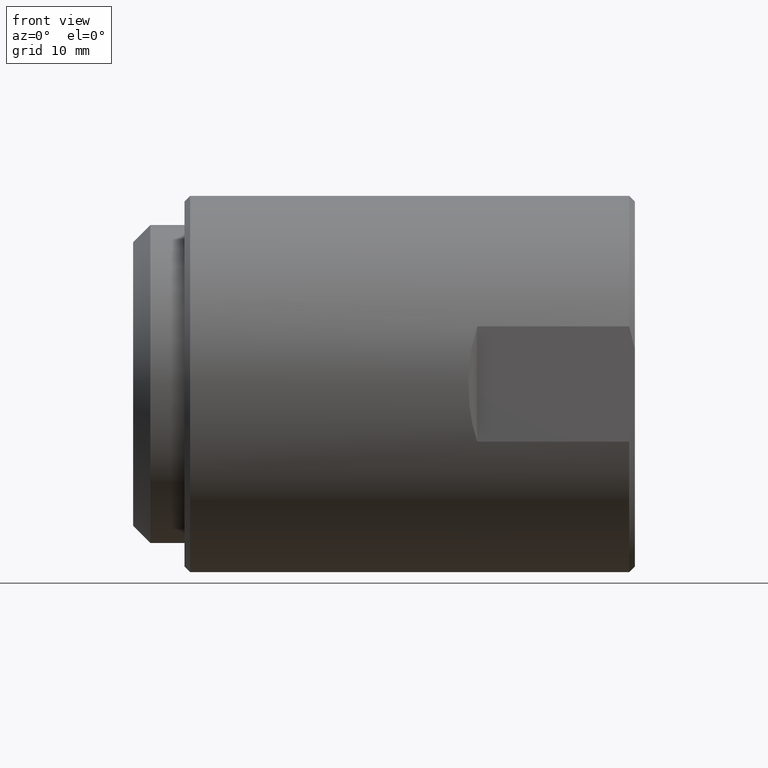
[diagram: clean part render]
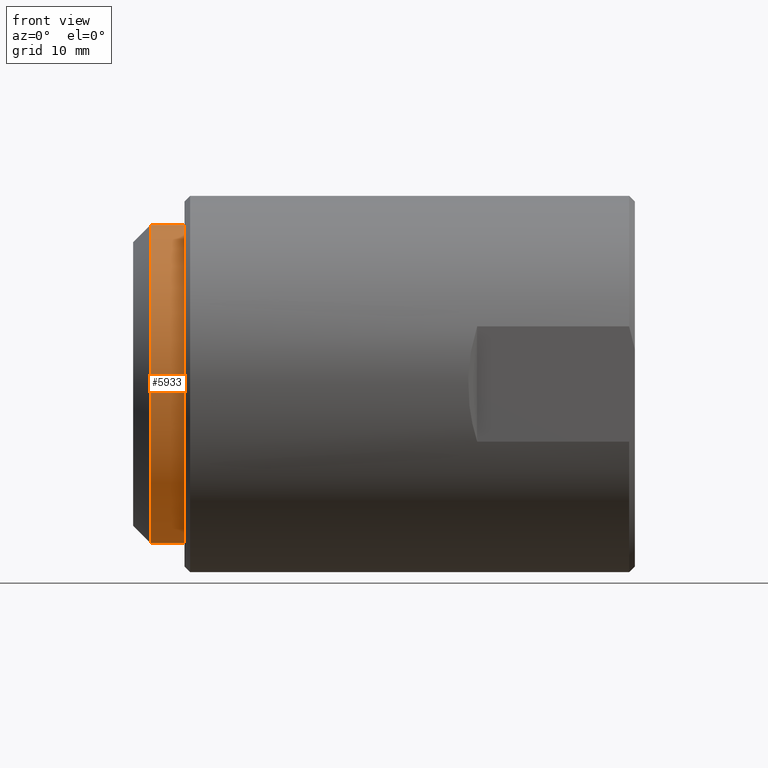
[diagram: same view with one face highlighted and labeled with its STEP entity id]
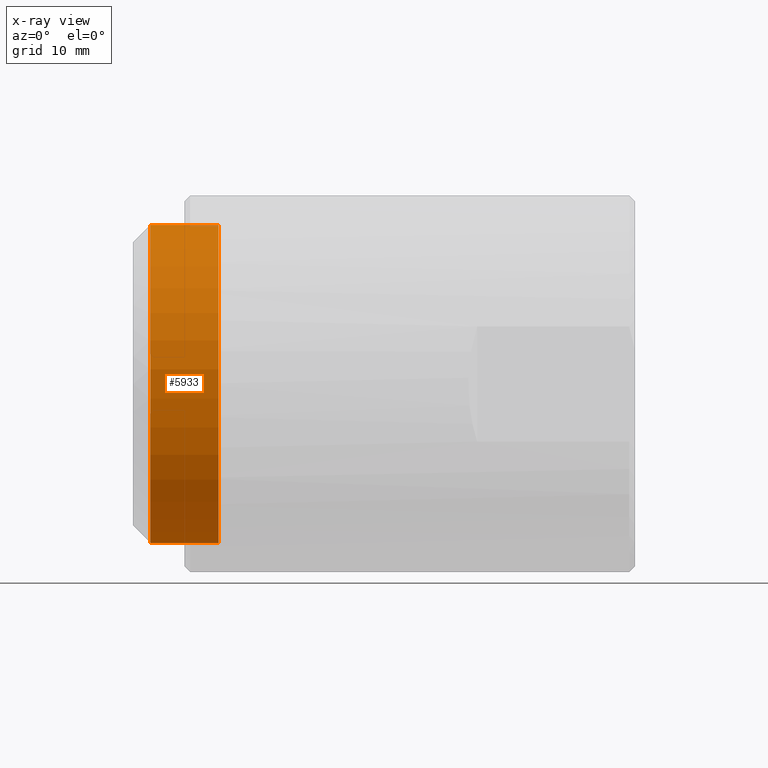
[diagram: x-ray of the same camera — body ghosted, the highlighted face saturated]
A machine part, front view. The second image highlights one B-rep face of the part: STEP entity #5933.
The next image is the same camera in x-ray: the body ghosted, the highlighted face saturated — about 1% of this face is hidden behind the body in this view.
In plain terms, the highlighted cylindrical surface (partial cylindrical patch) has radius 14.0843 mm, axis along (-1, -0, -0).
Its self-contained STEP definition (entity closure, byte-faithful):
#348 = CIRCLE ( 'NONE', #8546, 0.5544999999999999929 ) ;
#399 = CARTESIAN_POINT ( 'NONE',  ( 0.0000000000000000000, 6.790666501272072672E-17, -0.5544999999999998819 ) ) ;
#433 = CARTESIAN_POINT ( 'NONE',  ( 0.0000000000000000000, 0.0000000000000000000, 0.5544999999999998819 ) ) ;
#711 = CARTESIAN_POINT ( 'NONE',  ( -0.3775000000000000022, 6.790666501272072672E-17, -0.5544999999999998819 ) ) ;
#828 = CYLINDRICAL_SURFACE ( 'NONE', #4675, 0.5544999999999998819 ) ;
#1327 = ORIENTED_EDGE ( 'NONE', *, *, #4402, .F. ) ;
#1567 = CARTESIAN_POINT ( 'NONE',  ( -0.1394999999999999296, 6.790666501272073905E-17, -0.5545000000000001039 ) ) ;
#2320 = DIRECTION ( 'NONE',  ( -1.000000000000000000, -0.0000000000000000000, -0.0000000000000000000 ) ) ;
#2914 = ORIENTED_EDGE ( 'NONE', *, *, #9582, .T. ) ;
#3336 = EDGE_CURVE ( 'NONE', #8098, #9981, #10638, .T. ) ;
#3541 = CIRCLE ( 'NONE', #9652, 0.5544999999999998819 ) ;
#3608 = ORIENTED_EDGE ( 'NONE', *, *, #7647, .F. ) ;
#3790 = VERTEX_POINT ( 'NONE', #1567 ) ;
#4386 = CARTESIAN_POINT ( 'NONE',  ( 0.0000000000000000000, 0.0000000000000000000, 0.0000000000000000000 ) ) ;
#4402 = EDGE_CURVE ( 'NONE', #3790, #5885, #11257, .T. ) ;
#4675 = AXIS2_PLACEMENT_3D ( 'NONE', #4386, #11634, #8110 ) ;
#5008 = DIRECTION ( 'NONE',  ( -1.000000000000000000, -0.0000000000000000000, -0.0000000000000000000 ) ) ;
#5180 = DIRECTION ( 'NONE',  ( -1.000000000000000000, -0.0000000000000000000, -0.0000000000000000000 ) ) ;
#5881 = CARTESIAN_POINT ( 'NONE',  ( -0.3775000000000000022, 0.0000000000000000000, 0.5544999999999998819 ) ) ;
#5885 = VERTEX_POINT ( 'NONE', #711 ) ;
#5933 = ADVANCED_FACE ( 'NONE', ( #8996 ), #828, .T. ) ;
#7647 = EDGE_CURVE ( 'NONE', #5885, #9981, #3541, .T. ) ;
#7690 = DIRECTION ( 'NONE',  ( 0.0000000000000000000, 0.0000000000000000000, 1.000000000000000000 ) ) ;
#7891 = DIRECTION ( 'NONE',  ( 0.0000000000000000000, 0.0000000000000000000, 1.000000000000000000 ) ) ;
#7909 = VECTOR ( 'NONE', #10360, 39.37007874015748143 ) ;
#8098 = VERTEX_POINT ( 'NONE', #11661 ) ;
#8110 = DIRECTION ( 'NONE',  ( 0.0000000000000000000, 0.0000000000000000000, 1.000000000000000000 ) ) ;
#8456 = VECTOR ( 'NONE', #5008, 39.37007874015748143 ) ;
#8546 = AXIS2_PLACEMENT_3D ( 'NONE', #8784, #5180, #7891 ) ;
#8784 = CARTESIAN_POINT ( 'NONE',  ( -0.1394999999999999296, 0.0000000000000000000, 0.0000000000000000000 ) ) ;
#8996 = FACE_OUTER_BOUND ( 'NONE', #11147, .T. ) ;
#9582 = EDGE_CURVE ( 'NONE', #3790, #8098, #348, .T. ) ;
#9652 = AXIS2_PLACEMENT_3D ( 'NONE', #10551, #2320, #7690 ) ;
#9981 = VERTEX_POINT ( 'NONE', #5881 ) ;
#10360 = DIRECTION ( 'NONE',  ( -1.000000000000000000, -0.0000000000000000000, -0.0000000000000000000 ) ) ;
#10551 = CARTESIAN_POINT ( 'NONE',  ( -0.3775000000000000022, 0.0000000000000000000, 0.0000000000000000000 ) ) ;
#10638 = LINE ( 'NONE', #433, #8456 ) ;
#11147 = EDGE_LOOP ( 'NONE', ( #1327, #2914, #11239, #3608 ) ) ;
#11239 = ORIENTED_EDGE ( 'NONE', *, *, #3336, .T. ) ;
#11257 = LINE ( 'NONE', #399, #7909 ) ;
#11634 = DIRECTION ( 'NONE',  ( -1.000000000000000000, -0.0000000000000000000, -0.0000000000000000000 ) ) ;
#11661 = CARTESIAN_POINT ( 'NONE',  ( -0.1394999999999999296, 0.0000000000000000000, 0.5544999999999999929 ) ) ;